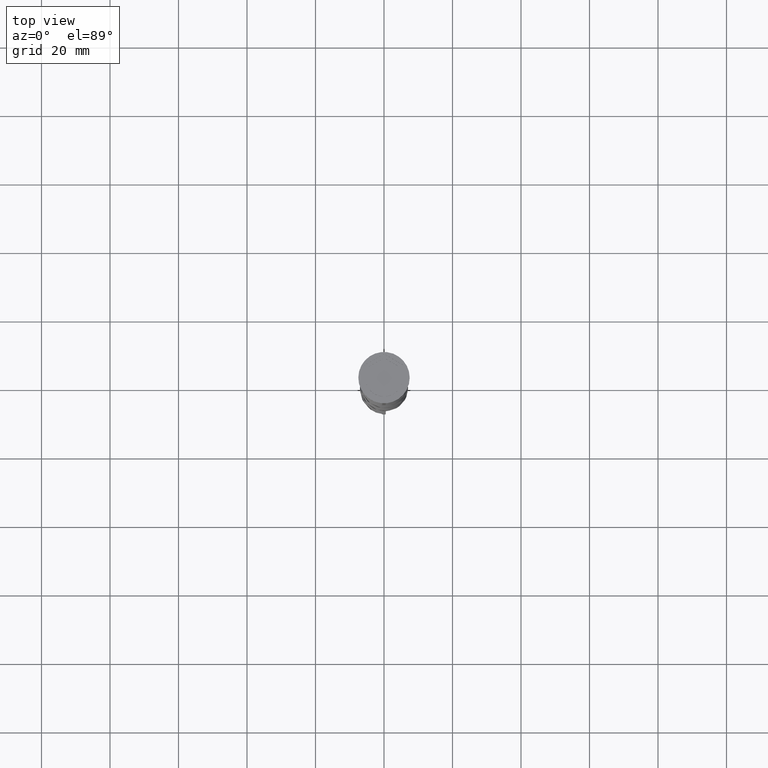
[diagram: clean part render]
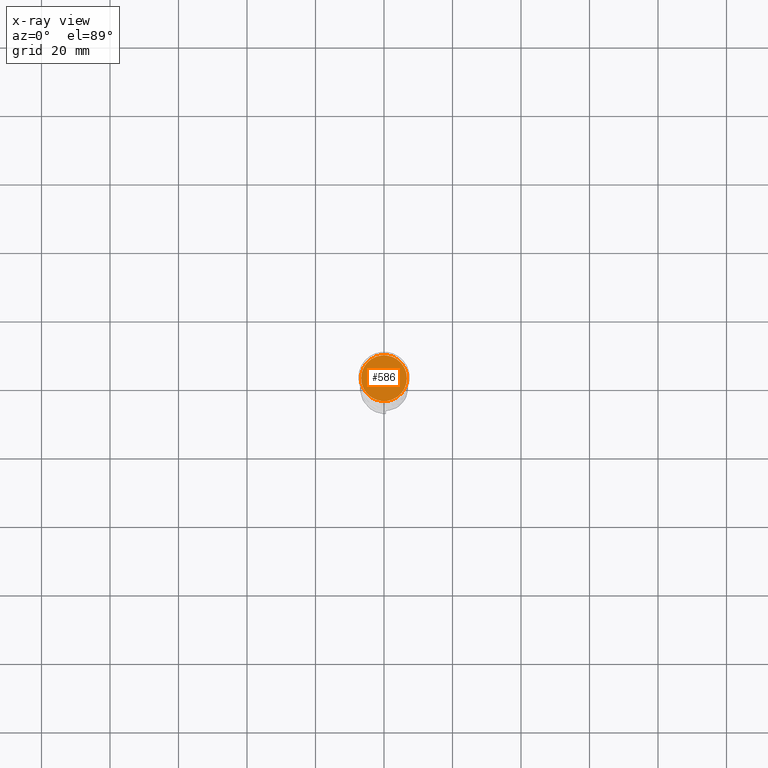
[diagram: x-ray — body ghosted, one internal face saturated and labeled with its STEP entity id]
A machine part, top view, then the same camera in x-ray: the body is ghosted and one INTERNAL B-rep face — a face not visible from any outside direction — is saturated and labeled: STEP entity #586.
In plain terms, the highlighted planar face has unit normal (0, 0, -1).
Its self-contained STEP definition (entity closure, byte-faithful):
#90 = ORIENTED_EDGE ( 'NONE', *, *, #3797, .T. ) ;
#416 = PLANE ( 'NONE',  #998 ) ;
#576 = DIRECTION ( 'NONE',  ( -0.000000000000000000, -0.000000000000000000, 1.000000000000000000 ) ) ;
#586 = ADVANCED_FACE ( 'NONE', ( #1907 ), #416, .F. ) ;
#650 = DIRECTION ( 'NONE',  ( -1.000000000000000000, 0.000000000000000000, 0.000000000000000000 ) ) ;
#696 = EDGE_LOOP ( 'NONE', ( #1408, #90 ) ) ;
#856 = VERTEX_POINT ( 'NONE', #3224 ) ;
#998 = AXIS2_PLACEMENT_3D ( 'NONE', #3133, #1629, #3097 ) ;
#1012 = AXIS2_PLACEMENT_3D ( 'NONE', #2679, #2735, #650 ) ;
#1221 = CIRCLE ( 'NONE', #3226, 6.700000000000001066 ) ;
#1408 = ORIENTED_EDGE ( 'NONE', *, *, #3264, .T. ) ;
#1592 = CARTESIAN_POINT ( 'NONE',  ( -6.700000000000001066, 0.000000000000000000, -10.50000000000000178 ) ) ;
#1629 = DIRECTION ( 'NONE',  ( 0.000000000000000000, 0.000000000000000000, -1.000000000000000000 ) ) ;
#1878 = VERTEX_POINT ( 'NONE', #1592 ) ;
#1907 = FACE_OUTER_BOUND ( 'NONE', #696, .T. ) ;
#2638 = DIRECTION ( 'NONE',  ( -1.000000000000000000, 0.000000000000000000, 0.000000000000000000 ) ) ;
#2679 = CARTESIAN_POINT ( 'NONE',  ( 0.000000000000000000, 0.000000000000000000, -10.50000000000000178 ) ) ;
#2718 = CIRCLE ( 'NONE', #1012, 6.700000000000001066 ) ;
#2735 = DIRECTION ( 'NONE',  ( -0.000000000000000000, -0.000000000000000000, 1.000000000000000000 ) ) ;
#3097 = DIRECTION ( 'NONE',  ( -1.000000000000000000, 0.000000000000000000, -0.000000000000000000 ) ) ;
#3133 = CARTESIAN_POINT ( 'NONE',  ( 0.000000000000000000, 0.000000000000000000, -10.50000000000000178 ) ) ;
#3224 = CARTESIAN_POINT ( 'NONE',  ( 6.700000000000001066, 8.388830574159370862E-16, -10.50000000000000178 ) ) ;
#3226 = AXIS2_PLACEMENT_3D ( 'NONE', #3516, #576, #2638 ) ;
#3264 = EDGE_CURVE ( 'NONE', #1878, #856, #2718, .T. ) ;
#3516 = CARTESIAN_POINT ( 'NONE',  ( 0.000000000000000000, 0.000000000000000000, -10.50000000000000178 ) ) ;
#3797 = EDGE_CURVE ( 'NONE', #856, #1878, #1221, .T. ) ;